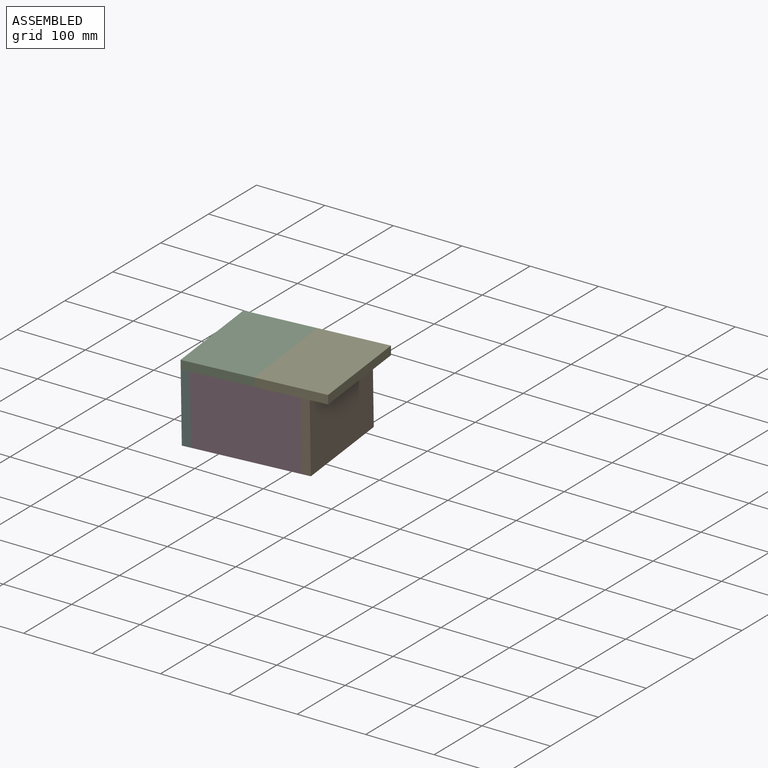
[diagram: assembled view]
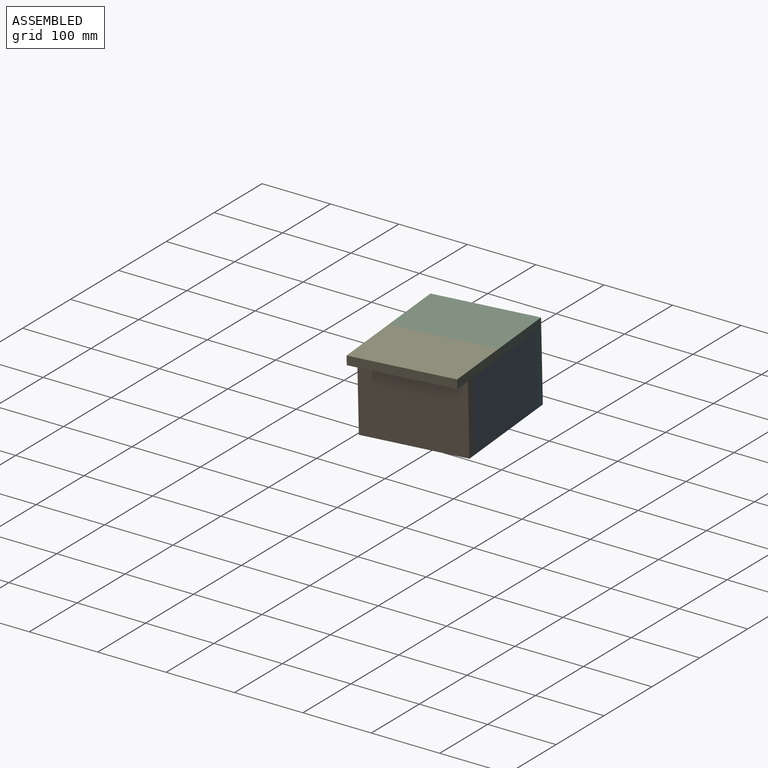
[diagram: assembled view, second angle]
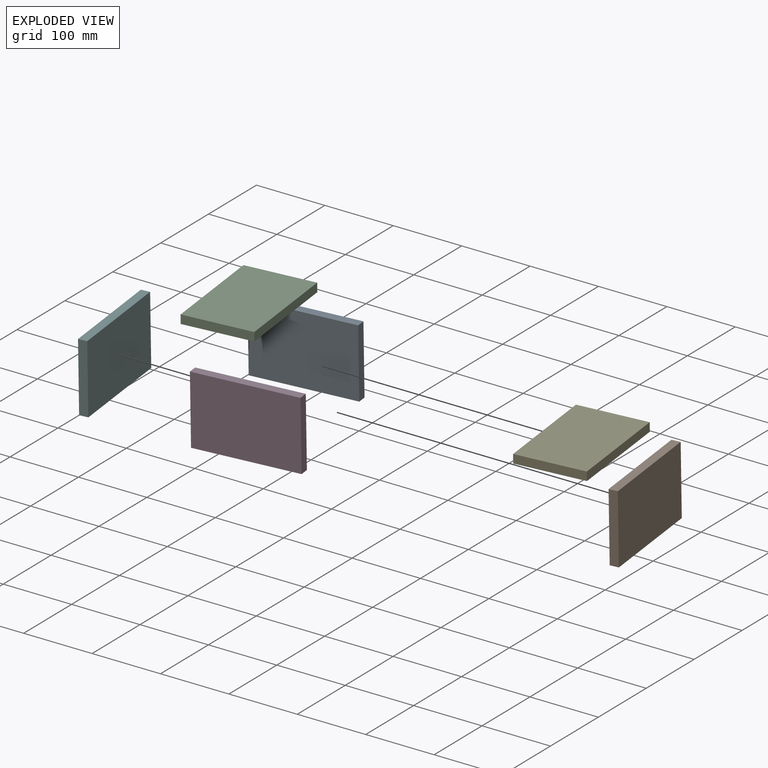
[diagram: exploded view]
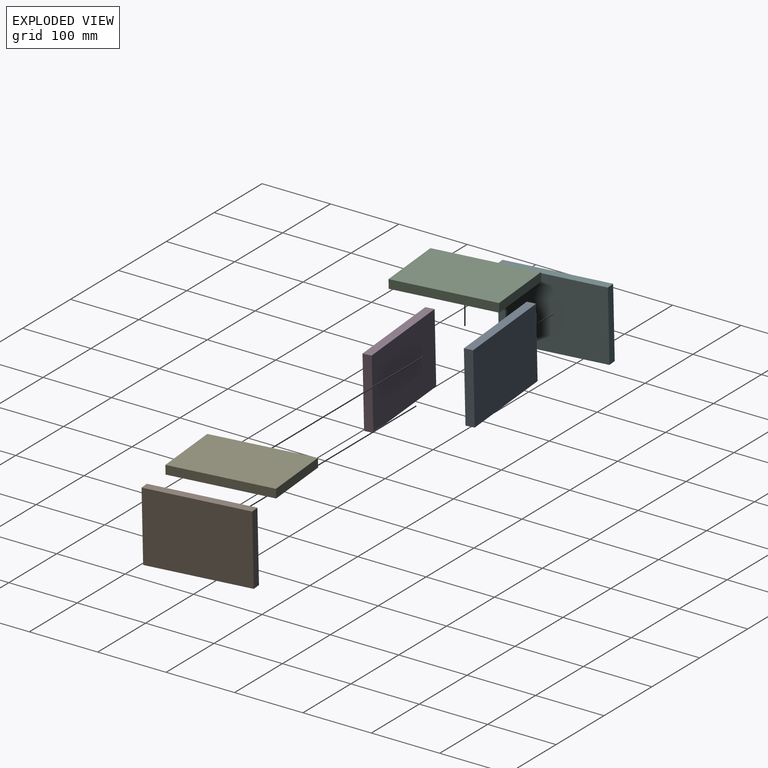
[diagram: exploded view, second angle]
ASSEMBLY  parts=6 mates=5
PART A: 6 faces, bbox 152.4x12.7x101.6 mm
  f0: plane 152.4x12.7mm, normal (0,0,-1), area 1935.5mm2, adj f1,f3,f4,f5
  f1: plane 101.6x12.7mm, normal (1,0,0), area 1290.3mm2, adj f0,f2,f4,f5
  f2: plane 152.4x12.7mm, normal (0,0,1), area 1935.5mm2, adj f1,f3,f4,f5
  f3: plane 101.6x12.7mm, normal (-1,0,0), area 1290.3mm2, adj f0,f2,f4,f5
  f4: plane 152.4x101.6mm, normal (0,-1,0), area 15483.8mm2, adj f0,f1,f2,f3
  f5: plane 152.4x101.6mm, normal (0,1,0), area 15483.8mm2, adj f0,f1,f2,f3
PART B: 6 faces, bbox 12.7x152.4x101.6 mm
  f0: plane 152.4x12.7mm, normal (0,0,-1), area 1935.5mm2, adj f1,f3,f4,f5
  f1: plane 101.6x12.7mm, normal (0,1,0), area 1290.3mm2, adj f0,f2,f4,f5
  f2: plane 152.4x12.7mm, normal (0,0,1), area 1935.5mm2, adj f1,f3,f4,f5
  f3: plane 101.6x12.7mm, normal (0,-1,0), area 1290.3mm2, adj f0,f2,f4,f5
  f4: plane 152.4x101.6mm, normal (1,0,0), area 15483.8mm2, adj f0,f1,f2,f3
  f5: plane 152.4x101.6mm, normal (-1,0,0), area 15483.8mm2, adj f0,f1,f2,f3
PART C: same geometry as B
PART D: same geometry as A
PART E: same geometry as B
PART F: same geometry as B
PLACE A rot(axis=(0.24,-0.01,0.97),5.5deg) t=(147.95,69.36,7.19)mm
PLACE B rot(axis=(0.24,-0.01,0.97),5.5deg) t=(155.09,-6.48,5.45)mm
PLACE C rot(axis=(0.06,-1,0.04),90.2deg) t=(117.16,-9.47,-20.03)mm
PLACE D rot(axis=(0.24,-0.01,0.97),5.5deg) t=(161.04,-69.69,4)mm
PLACE E rot(axis=(0.06,-1,0.04),90.2deg) t=(218.31,0.05,-19.81)mm
PLACE F rot(axis=(0.24,-0.01,0.97),5.5deg) t=(-9.28,-21.95,5.09)mm
MATE fastened F.f2 <-> A.f2  axis (0,-0.02,1) through (72.09,61.06,57.81)mm
MATE fastened E.f2 <-> C.f0  axis (-1,-0.09,0) through (160.59,69.39,58)mm
MATE fastened D.f2 <-> F.f2  axis (0,-0.02,1) through (86.37,-90.63,54.33)mm
MATE fastened C.f2 <-> F.f5  axis (-1,-0.09,0) through (59.44,59.87,57.78)mm
MATE fastened B.f0 <-> A.f0  axis (0,-0.02,1) through (223.81,77.67,-43.44)mm
